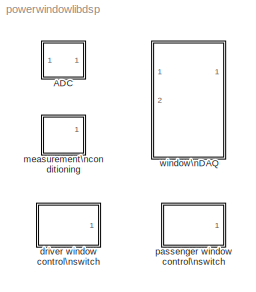
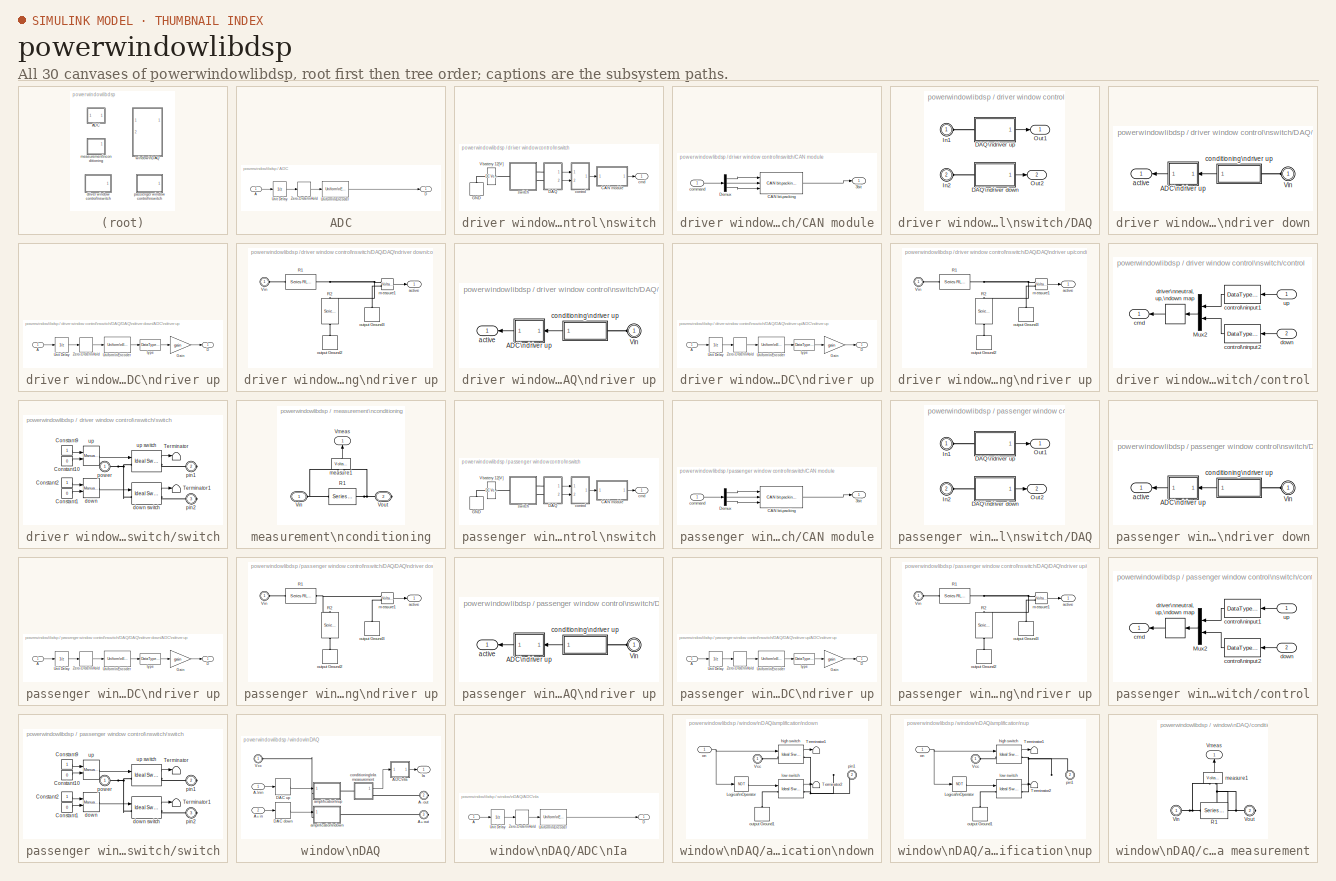
[diagram: thumbnail index - all 30 canvases of the model, root first then tree order]
MODEL powerwindowlibdsp
KIND library
CONFIG InitFcn = powericon('psbinitsys',bdroot);
BLOCK [SubSystem] ADC
  MaskCallbackString = |||
  MaskDescription = Analog (A) to digital (D) converter with sample rate, conversion delay, range, and number of bits used for conversion.
  MaskDisplay = plot([0.5 1.5 1.5 2.5 2.5 3.5 3.5 4.5], [0 0 1 1 2 2 3 3])\nplot([0 3], [0 3])
  MaskEnableString = on,on,on,on
  MaskIconFrame = on
  MaskIconOpaque = on
  MaskIconRotate = port
  MaskIconUnits = autoscale
  MaskInitialization = \n
  MaskPromptString = sample time (-1 for inherited)|peak|delay (-1 for inherited)|bits
  MaskStyleString = edit,edit,edit,edit
  MaskTabNameString = ,,,
  MaskToolTipString = on,on,on,on
  MaskTunableValueString = on,on,on,on
  MaskType = AD Converter
  MaskValueString = 0.01|3.5|0.005|8
  MaskVarAliasString = ,,,
  MaskVariables = Ts=@1;peak=@2;Td=@3;bits=@4;
  MaskVisibilityString = on,on,on,on
  MinAlgLoopOccurrences = off
  Ports = [1, 1]
  PropExecContextAcrossSSBoundary = on
  RTWSystemCode = Auto
  TreatAsAtomicUnit = off
BLOCK [Inport] ADC/A
  IconDisplay = Port number
  LatchInput = off
  Port = 1
BLOCK [Outport] ADC/D
  BusOutputAsStruct = off
  IconDisplay = Port number
BLOCK [Reference] ADC/Uniform\nEncoder  REF=dspquant2/Uniform\nEncoder
  Ports = [1, 1]
  SourceBlock = dspquant2/Uniform\nEncoder
  SourceType = Uniform Encoder
  bits = bits
  otype = Signed integer
  peak = peak
BLOCK [UnitDelay] ADC/Unit Delay
  SampleTime = Td
BLOCK [ZeroOrderHold] ADC/Zero-Order\nHold
  SampleTime = Ts
BLOCK [SubSystem] driver window control\nswitch
  MinAlgLoopOccurrences = off
  Ports = [0, 1]
  PropExecContextAcrossSSBoundary = on
  RTWSystemCode = Auto
  TreatAsAtomicUnit = off
BLOCK [SubSystem] driver window control\nswitch/CAN module
  MinAlgLoopOccurrences = off
  Ports = [1, 1]
  PropExecContextAcrossSSBoundary = on
  RTWSystemCode = Auto
  TreatAsAtomicUnit = off
BLOCK [Outport] driver window control\nswitch/CAN module/3bit
  BusOutputAsStruct = off
  IconDisplay = Port number
BLOCK [Reference] driver window control\nswitch/CAN module/CAN bit-packing   REF=xpclib/CAN/Utilities/CAN bit-packing 
  Ports = [3, 1]
  SourceBlock = xpclib/CAN/Utilities/CAN bit-packing
  SourceType = bit2double
  bitpatterns = { [0:0] [1:1] [2:2]}
BLOCK [Demux] driver window control\nswitch/CAN module/Demux
  Outputs = 3
  Ports = [1, 3]
BLOCK [Inport] driver window control\nswitch/CAN module/command
  IconDisplay = Port number
  LatchInput = off
  Port = 1
BLOCK [SubSystem] driver window control\nswitch/DAQ
  MinAlgLoopOccurrences = off
  Ports = [0, 2, 0, 0, 0, 2]
  PropExecContextAcrossSSBoundary = on
  RTWSystemCode = Auto
  TreatAsAtomicUnit = off
BLOCK [SubSystem] driver window control\nswitch/DAQ/DAQ\ndriver down
  MinAlgLoopOccurrences = off
  Ports = [0, 1, 0, 0, 0, 1]
  PropExecContextAcrossSSBoundary = on
  RTWSystemCode = Auto
  TreatAsAtomicUnit = off
BLOCK [SubSystem] driver window control\nswitch/DAQ/DAQ\ndriver down/ADC\ndriver up
  MaskCallbackString = |||
  MaskDescription = Analog (A) to digital (D) converter with sample rate, conversion delay, range, and number of bits used for conversion.
  MaskDisplay = plot([0.5 1.5 1.5 2.5 2.5 3.5 3.5 4.5], [0 0 1 1 2 2 3 3])\nplot([0 3], [0 3])
  MaskEnableString = on,on,on,on
  MaskIconFrame = on
  MaskIconOpaque = on
  MaskIconRotate = port
  MaskIconUnits = autoscale
  MaskInitialization = gain = peak / (2^(bits-1));\n
  MaskPromptString = sample time (-1 for inherited)|delay (-1 for inherited)|peak|bits
  MaskStyleString = edit,edit,edit,edit
  MaskTabNameString = ,,,
  MaskToolTipString = on,on,on,on
  MaskTunableValueString = on,on,on,on
  MaskType = AD Converter
  MaskValueString = 0.01|0.005|4.9|2
  MaskVarAliasString = ,,,
  MaskVariables = Ts=@1;Td=@2;peak=@3;bits=@4;
  MaskVisibilityString = on,on,on,on
  MinAlgLoopOccurrences = off
  Ports = [1, 1]
  PropExecContextAcrossSSBoundary = on
  RTWSystemCode = Auto
  TreatAsAtomicUnit = off
BLOCK [Inport] driver window control\nswitch/DAQ/DAQ\ndriver down/ADC\ndriver up/A
  IconDisplay = Port number
  LatchInput = off
  Port = 1
BLOCK [Outport] driver window control\nswitch/DAQ/DAQ\ndriver down/ADC\ndriver up/D
  BusOutputAsStruct = off
  IconDisplay = Port number
BLOCK [Gain] driver window control\nswitch/DAQ/DAQ\ndriver down/ADC\ndriver up/Gain
  Gain = gain
BLOCK [Reference] driver window control\nswitch/DAQ/DAQ\ndriver down/ADC\ndriver up/Uniform\nEncoder  REF=dspquant2/Uniform\nEncoder
  Ports = [1, 1]
  SourceBlock = dspquant2/Uniform\nEncoder
  SourceType = Uniform Encoder
  bits = bits
  otype = Signed integer
  peak = peak
BLOCK [UnitDelay] driver window control\nswitch/DAQ/DAQ\ndriver down/ADC\ndriver up/Unit Delay
  SampleTime = Td
BLOCK [ZeroOrderHold] driver window control\nswitch/DAQ/DAQ\ndriver down/ADC\ndriver up/Zero-Order\nHold
  SampleTime = Ts
BLOCK [DataTypeConversion] driver window control\nswitch/DAQ/DAQ\ndriver down/ADC\ndriver up/type
  OutDataTypeMode = double
BLOCK [PMIOPort] driver window control\nswitch/DAQ/DAQ\ndriver down/Vin
  Port = 1
  Side = Left
BLOCK [Outport] driver window control\nswitch/DAQ/DAQ\ndriver down/active
  BusOutputAsStruct = off
  IconDisplay = Port number
BLOCK [SubSystem] driver window control\nswitch/DAQ/DAQ\ndriver down/conditioning\ndriver up
  MinAlgLoopOccurrences = off
  Ports = [0, 1, 0, 0, 0, 1]
  PropExecContextAcrossSSBoundary = on
  RTWSystemCode = Auto
  TreatAsAtomicUnit = off
BLOCK [Reference] driver window control\nswitch/DAQ/DAQ\ndriver down/conditioning\ndriver up/R1  REF=powerlib/Elements/Series RLC Branch
  Capacitance = inf
  Inductance = 0
  LConnTagsString = __new0
  LeftPortType = p1
  Measurements = None
  PhysicalDomain = powersysdomain
  Ports = [0, 0, 0, 0, 0, 1, 1]
  RConnTagsString = __new0
  Resistance = 6800
  RightPortType = p1
  SourceBlock = powerlib/Elements/Series RLC Branch
  SourceType = Series RLC Branch
  SubClassName = unknown
BLOCK [Reference] driver window control\nswitch/DAQ/DAQ\ndriver down/conditioning\ndriver up/R2  REF=powerlib/Elements/Series RLC Branch
  Capacitance = inf
  Inductance = 0
  LConnTagsString = __new0
  LeftPortType = p1
  Measurements = None
  PhysicalDomain = powersysdomain
  Ports = [0, 0, 0, 0, 0, 1, 1]
  RConnTagsString = __new0
  Resistance = 4700
  RightPortType = p1
  SourceBlock = powerlib/Elements/Series RLC Branch
  SourceType = Series RLC Branch
  SubClassName = unknown
BLOCK [PMIOPort] driver window control\nswitch/DAQ/DAQ\ndriver down/conditioning\ndriver up/Vin
  Port = 1
  Side = Left
BLOCK [Outport] driver window control\nswitch/DAQ/DAQ\ndriver down/conditioning\ndriver up/active
  BusOutputAsStruct = off
  IconDisplay = Port number
BLOCK [Reference] driver window control\nswitch/DAQ/DAQ\ndriver down/conditioning\ndriver up/measure1  REF=powerlib/Measurements/Voltage Measurement
  OutputType = Magnitude
  PSBequivalent = 0
  PhasorSimulation = off
  Ports = [0, 1, 0, 0, 0, 2]
  ShowPortLabels = on
  SourceBlock = powerlib/Measurements/Voltage Measurement
  SourceType = Voltage Measurement
BLOCK [PMComponent] driver window control\nswitch/DAQ/DAQ\ndriver down/conditioning\ndriver up/output Ground2
  LConnTagsString = a
  LeftPortType = p1
  MaskDescription = Ground connection.
  MaskDisplay = plot(-10,-10,10,10,-[5 5],[-10 10],[0 0],[-5 5],-[-5 -5],[-2.5 2.5],-[15 5],[0 0])
  MaskHelp = web(psbhelp);
  MaskIconFrame = off
  MaskIconOpaque = on
  MaskIconRotate = port
  MaskIconUnits = autoscale
  MaskType = Ground
  PhysicalDomain = powersysdomain
  Ports = [0, 0, 0, 0, 0, 1]
  RightPortType = p1
BLOCK [PMComponent] driver window control\nswitch/DAQ/DAQ\ndriver down/conditioning\ndriver up/output Ground3
  LConnTagsString = a
  LeftPortType = p1
  MaskDescription = Ground connection.
  MaskDisplay = plot(-10,-10,10,10,-[5 5],[-10 10],[0 0],[-5 5],-[-5 -5],[-2.5 2.5],-[15 5],[0 0])
  MaskHelp = web(psbhelp);
  MaskIconFrame = off
  MaskIconOpaque = on
  MaskIconRotate = port
  MaskIconUnits = autoscale
  MaskType = Ground
  PhysicalDomain = powersysdomain
  Ports = [0, 0, 0, 0, 0, 1]
  RightPortType = p1
BLOCK [SubSystem] driver window control\nswitch/DAQ/DAQ\ndriver up
  MinAlgLoopOccurrences = off
  Ports = [0, 1, 0, 0, 0, 1]
  PropExecContextAcrossSSBoundary = on
  RTWSystemCode = Auto
  TreatAsAtomicUnit = off
BLOCK [SubSystem] driver window control\nswitch/DAQ/DAQ\ndriver up/ADC\ndriver up
  MaskCallbackString = |||
  MaskDescription = Analog (A) to digital (D) converter with sample rate, conversion delay, range, and number of bits used for conversion.
  MaskDisplay = plot([0.5 1.5 1.5 2.5 2.5 3.5 3.5 4.5], [0 0 1 1 2 2 3 3])\nplot([0 3], [0 3])
  MaskEnableString = on,on,on,on
  MaskIconFrame = on
  MaskIconOpaque = on
  MaskIconRotate = port
  MaskIconUnits = autoscale
  MaskInitialization = gain = peak / (2^(bits-1));\n
  MaskPromptString = sample time (-1 for inherited)|delay (-1 for inherited)|peak|bits
  MaskStyleString = edit,edit,edit,edit
  MaskTabNameString = ,,,
  MaskToolTipString = on,on,on,on
  MaskTunableValueString = on,on,on,on
  MaskType = AD Converter
  MaskValueString = 0.01|0.005|4.9|2
  MaskVarAliasString = ,,,
  MaskVariables = Ts=@1;Td=@2;peak=@3;bits=@4;
  MaskVisibilityString = on,on,on,on
  MinAlgLoopOccurrences = off
  Ports = [1, 1]
  PropExecContextAcrossSSBoundary = on
  RTWSystemCode = Auto
  TreatAsAtomicUnit = off
BLOCK [Inport] driver window control\nswitch/DAQ/DAQ\ndriver up/ADC\ndriver up/A
  IconDisplay = Port number
  LatchInput = off
  Port = 1
BLOCK [Outport] driver window control\nswitch/DAQ/DAQ\ndriver up/ADC\ndriver up/D
  BusOutputAsStruct = off
  IconDisplay = Port number
BLOCK [Gain] driver window control\nswitch/DAQ/DAQ\ndriver up/ADC\ndriver up/Gain
  Gain = gain
BLOCK [Reference] driver window control\nswitch/DAQ/DAQ\ndriver up/ADC\ndriver up/Uniform\nEncoder  REF=dspquant2/Uniform\nEncoder
  Ports = [1, 1]
  SourceBlock = dspquant2/Uniform\nEncoder
  SourceType = Uniform Encoder
  bits = bits
  otype = Signed integer
  peak = peak
BLOCK [UnitDelay] driver window control\nswitch/DAQ/DAQ\ndriver up/ADC\ndriver up/Unit Delay
  SampleTime = Td
BLOCK [ZeroOrderHold] driver window control\nswitch/DAQ/DAQ\ndriver up/ADC\ndriver up/Zero-Order\nHold
  SampleTime = Ts
BLOCK [DataTypeConversion] driver window control\nswitch/DAQ/DAQ\ndriver up/ADC\ndriver up/type
  OutDataTypeMode = double
BLOCK [PMIOPort] driver window control\nswitch/DAQ/DAQ\ndriver up/Vin
  Port = 1
  Side = Left
BLOCK [Outport] driver window control\nswitch/DAQ/DAQ\ndriver up/active
  BusOutputAsStruct = off
  IconDisplay = Port number
BLOCK [SubSystem] driver window control\nswitch/DAQ/DAQ\ndriver up/conditioning\ndriver up
  MinAlgLoopOccurrences = off
  Ports = [0, 1, 0, 0, 0, 1]
  PropExecContextAcrossSSBoundary = on
  RTWSystemCode = Auto
  TreatAsAtomicUnit = off
BLOCK [Reference] driver window control\nswitch/DAQ/DAQ\ndriver up/conditioning\ndriver up/R1  REF=powerlib/Elements/Series RLC Branch
  Capacitance = inf
  Inductance = 0
  LConnTagsString = __new0
  LeftPortType = p1
  Measurements = None
  PhysicalDomain = powersysdomain
  Ports = [0, 0, 0, 0, 0, 1, 1]
  RConnTagsString = __new0
  Resistance = 6800
  RightPortType = p1
  SourceBlock = powerlib/Elements/Series RLC Branch
  SourceType = Series RLC Branch
  SubClassName = unknown
BLOCK [Reference] driver window control\nswitch/DAQ/DAQ\ndriver up/conditioning\ndriver up/R2  REF=powerlib/Elements/Series RLC Branch
  Capacitance = inf
  Inductance = 0
  LConnTagsString = __new0
  LeftPortType = p1
  Measurements = None
  PhysicalDomain = powersysdomain
  Ports = [0, 0, 0, 0, 0, 1, 1]
  RConnTagsString = __new0
  Resistance = 4700
  RightPortType = p1
  SourceBlock = powerlib/Elements/Series RLC Branch
  SourceType = Series RLC Branch
  SubClassName = unknown
BLOCK [PMIOPort] driver window control\nswitch/DAQ/DAQ\ndriver up/conditioning\ndriver up/Vin
  Port = 1
  Side = Left
BLOCK [Outport] driver window control\nswitch/DAQ/DAQ\ndriver up/conditioning\ndriver up/active
  BusOutputAsStruct = off
  IconDisplay = Port number
BLOCK [Reference] driver window control\nswitch/DAQ/DAQ\ndriver up/conditioning\ndriver up/measure1  REF=powerlib/Measurements/Voltage Measurement
  OutputType = Magnitude
  PSBequivalent = 0
  PhasorSimulation = off
  Ports = [0, 1, 0, 0, 0, 2]
  ShowPortLabels = on
  SourceBlock = powerlib/Measurements/Voltage Measurement
  SourceType = Voltage Measurement
BLOCK [PMComponent] driver window control\nswitch/DAQ/DAQ\ndriver up/conditioning\ndriver up/output Ground2
  LConnTagsString = a
  LeftPortType = p1
  MaskDescription = Ground connection.
  MaskDisplay = plot(-10,-10,10,10,-[5 5],[-10 10],[0 0],[-5 5],-[-5 -5],[-2.5 2.5],-[15 5],[0 0])
  MaskHelp = web(psbhelp);
  MaskIconFrame = off
  MaskIconOpaque = on
  MaskIconRotate = port
  MaskIconUnits = autoscale
  MaskType = Ground
  PhysicalDomain = powersysdomain
  Ports = [0, 0, 0, 0, 0, 1]
  RightPortType = p1
BLOCK [PMComponent] driver window control\nswitch/DAQ/DAQ\ndriver up/conditioning\ndriver up/output Ground3
  LConnTagsString = a
  LeftPortType = p1
  MaskDescription = Ground connection.
  MaskDisplay = plot(-10,-10,10,10,-[5 5],[-10 10],[0 0],[-5 5],-[-5 -5],[-2.5 2.5],-[15 5],[0 0])
  MaskHelp = web(psbhelp);
  MaskIconFrame = off
  MaskIconOpaque = on
  MaskIconRotate = port
  MaskIconUnits = autoscale
  MaskType = Ground
  PhysicalDomain = powersysdomain
  Ports = [0, 0, 0, 0, 0, 1]
  RightPortType = p1
BLOCK [PMIOPort] driver window control\nswitch/DAQ/In1
  Port = 1
  Side = Left
BLOCK [PMIOPort] driver window control\nswitch/DAQ/In2
  Port = 2
  Side = Left
BLOCK [Outport] driver window control\nswitch/DAQ/Out1
  BusOutputAsStruct = off
  IconDisplay = Port number
BLOCK [Outport] driver window control\nswitch/DAQ/Out2
  BusOutputAsStruct = off
  IconDisplay = Port number
  Port = 2
BLOCK [PMComponent] driver window control\nswitch/GND
  LConnTagsString = a
  LeftPortType = p1
  MaskDescription = Ground connection.
  MaskDisplay = plot(-10,-10,10,10,-[5 5],[-10 10],[0 0],[-5 5],-[-5 -5],[-2.5 2.5],-[15 5],[0 0])
  MaskHelp = web(psbhelp);
  MaskIconFrame = off
  MaskIconOpaque = on
  MaskIconRotate = port
  MaskIconUnits = autoscale
  MaskType = Ground
  PhysicalDomain = powersysdomain
  Ports = [0, 0, 0, 0, 0, 1]
  RightPortType = p1
BLOCK [Reference] driver window control\nswitch/Vbattery 12[V]  REF=powerlib/Electrical\nSources/DC Voltage Source
  Amplitude = 12
  Measurements = None
  Ports = [0, 0, 0, 0, 0, 1, 1]
  ShowPortLabels = on
  SourceBlock = powerlib/Electrical\nSources/DC Voltage Source
  SourceType = DC Voltage Source
BLOCK [Outport] driver window control\nswitch/cmd
  BusOutputAsStruct = off
  IconDisplay = Port number
BLOCK [SubSystem] driver window control\nswitch/control
  MinAlgLoopOccurrences = off
  Ports = [2, 1]
  PropExecContextAcrossSSBoundary = on
  RTWSystemCode = Auto
  TreatAsAtomicUnit = off
BLOCK [Mux] driver window control\nswitch/control/Mux2
  DisplayOption = bar
  Inputs = 2
  Ports = [2, 1]
BLOCK [Outport] driver window control\nswitch/control/cmd
  BusOutputAsStruct = off
  IconDisplay = Port number
BLOCK [DataTypeConversion] driver window control\nswitch/control/control\ninput1
  OutDataTypeMode = boolean
BLOCK [DataTypeConversion] driver window control\nswitch/control/control\ninput2
  OutDataTypeMode = boolean
BLOCK [Inport] driver window control\nswitch/control/down
  IconDisplay = Port number
  LatchInput = off
  Port = 2
BLOCK [CombinatorialLogic] driver window control\nswitch/control/driver\nneutral, up,\ndown map
  TruthTable = [1 0 0;0 0 1;0 1 0;1 0 0]
BLOCK [Inport] driver window control\nswitch/control/up
  IconDisplay = Port number
  LatchInput = off
  Port = 1
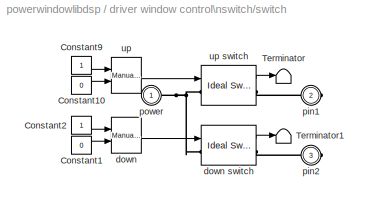
BLOCK [SubSystem] driver window control\nswitch/switch
  MinAlgLoopOccurrences = off
  Ports = [0, 0, 0, 0, 0, 1, 2]
  PropExecContextAcrossSSBoundary = on
  RTWSystemCode = Auto
  TreatAsAtomicUnit = off
BLOCK [Constant] driver window control\nswitch/switch/Constant1
  Value = 0
BLOCK [Constant] driver window control\nswitch/switch/Constant10
  Value = 0
BLOCK [Constant] driver window control\nswitch/switch/Constant2
BLOCK [Constant] driver window control\nswitch/switch/Constant9
BLOCK [Terminator] driver window control\nswitch/switch/Terminator
BLOCK [Terminator] driver window control\nswitch/switch/Terminator1
BLOCK [Reference] driver window control\nswitch/switch/down  REF=simulink/Signal\nRouting/Manual Switch
  Ports = [2, 1]
  ShowPortLabels = on
  SourceBlock = simulink/Signal\nRouting/Manual Switch
  SourceType = Manual Switch
  action = 0
  sw = 0
BLOCK [Reference] driver window control\nswitch/switch/down switch  REF=powerlib/Power\nElectronics/Ideal Switch
  Cs = inf
  IC = 0
  Lon = 0
  Measurements = on
  Ports = [1, 1, 0, 0, 0, 1, 1]
  Ron = 0.01
  Rs = 1000000
  ShowPortLabels = on
  SourceBlock = powerlib/Power\nElectronics/Ideal Switch
  SourceType = Ideal Switch
BLOCK [PMIOPort] driver window control\nswitch/switch/pin1
  Port = 2
  Side = Right
BLOCK [PMIOPort] driver window control\nswitch/switch/pin2
  Port = 3
  Side = Right
BLOCK [PMIOPort] driver window control\nswitch/switch/power
  Port = 1
  Side = Left
BLOCK [Reference] driver window control\nswitch/switch/up  REF=simulink/Signal\nRouting/Manual Switch
  Ports = [2, 1]
  ShowPortLabels = on
  SourceBlock = simulink/Signal\nRouting/Manual Switch
  SourceType = Manual Switch
  action = 0
  sw = 0
BLOCK [Reference] driver window control\nswitch/switch/up switch  REF=powerlib/Power\nElectronics/Ideal Switch
  Cs = inf
  IC = 0
  Lon = 0
  Measurements = on
  Ports = [1, 1, 0, 0, 0, 1, 1]
  Ron = 0.01
  Rs = 1000000
  ShowPortLabels = on
  SourceBlock = powerlib/Power\nElectronics/Ideal Switch
  SourceType = Ideal Switch
BLOCK [SubSystem] measurement\nconditioning
  MinAlgLoopOccurrences = off
  Ports = [0, 1, 0, 0, 0, 1, 1]
  PropExecContextAcrossSSBoundary = on
  RTWSystemCode = Auto
  TreatAsAtomicUnit = off
BLOCK [Reference] measurement\nconditioning/R1  REF=powerlib/Elements/Series RLC Branch
  Capacitance = inf
  Inductance = 0
  LConnTagsString = __new0
  LeftPortType = p1
  Measurements = None
  PhysicalDomain = powersysdomain
  Ports = [0, 0, 0, 0, 0, 1, 1]
  RConnTagsString = __new0
  Resistance = 0.18
  RightPortType = p1
  SourceBlock = powerlib/Elements/Series RLC Branch
  SourceType = Series RLC Branch
  SubClassName = unknown
BLOCK [PMIOPort] measurement\nconditioning/Vin
  Port = 1
  Side = Left
  Tag = PMCPort
BLOCK [Outport] measurement\nconditioning/Vmeas
  BusOutputAsStruct = off
  IconDisplay = Port number
BLOCK [PMIOPort] measurement\nconditioning/Vout
  Port = 2
  Side = Right
  Tag = PMCPort
BLOCK [Reference] measurement\nconditioning/measure1  REF=powerlib/Measurements/Voltage Measurement
  OutputType = Magnitude
  PSBequivalent = 0
  PhasorSimulation = off
  Ports = [0, 1, 0, 0, 0, 2]
  ShowPortLabels = on
  SourceBlock = powerlib/Measurements/Voltage Measurement
  SourceType = Voltage Measurement
BLOCK [SubSystem] passenger window control\nswitch
  MinAlgLoopOccurrences = off
  Ports = [0, 1]
  PropExecContextAcrossSSBoundary = on
  RTWSystemCode = Auto
  TreatAsAtomicUnit = off
BLOCK [SubSystem] passenger window control\nswitch/CAN module
  MinAlgLoopOccurrences = off
  Ports = [1, 1]
  PropExecContextAcrossSSBoundary = on
  RTWSystemCode = Auto
  TreatAsAtomicUnit = off
BLOCK [Outport] passenger window control\nswitch/CAN module/3bit
  BusOutputAsStruct = off
  IconDisplay = Port number
BLOCK [Reference] passenger window control\nswitch/CAN module/CAN bit-packing   REF=xpclib/CAN/Utilities/CAN bit-packing 
  Ports = [3, 1]
  SourceBlock = xpclib/CAN/Utilities/CAN bit-packing
  SourceType = bit2double
  bitpatterns = { [0:0] [1:1] [2:2]}
BLOCK [Demux] passenger window control\nswitch/CAN module/Demux
  Outputs = 3
  Ports = [1, 3]
BLOCK [Inport] passenger window control\nswitch/CAN module/command
  IconDisplay = Port number
  LatchInput = off
  Port = 1
BLOCK [SubSystem] passenger window control\nswitch/DAQ
  MinAlgLoopOccurrences = off
  Ports = [0, 2, 0, 0, 0, 2]
  PropExecContextAcrossSSBoundary = on
  RTWSystemCode = Auto
  TreatAsAtomicUnit = off
BLOCK [SubSystem] passenger window control\nswitch/DAQ/DAQ\ndriver down
  MinAlgLoopOccurrences = off
  Ports = [0, 1, 0, 0, 0, 1]
  PropExecContextAcrossSSBoundary = on
  RTWSystemCode = Auto
  TreatAsAtomicUnit = off
BLOCK [SubSystem] passenger window control\nswitch/DAQ/DAQ\ndriver down/ADC\ndriver up
  MaskCallbackString = |||
  MaskDescription = Analog (A) to digital (D) converter with sample rate, conversion delay, range, and number of bits used for conversion.
  MaskDisplay = plot([0.5 1.5 1.5 2.5 2.5 3.5 3.5 4.5], [0 0 1 1 2 2 3 3])\nplot([0 3], [0 3])
  MaskEnableString = on,on,on,on
  MaskIconFrame = on
  MaskIconOpaque = on
  MaskIconRotate = port
  MaskIconUnits = autoscale
  MaskInitialization = gain = peak / (2^(bits-1));\n
  MaskPromptString = sample time (-1 for inherited)|delay (-1 for inherited)|peak|bits
  MaskStyleString = edit,edit,edit,edit
  MaskTabNameString = ,,,
  MaskToolTipString = on,on,on,on
  MaskTunableValueString = on,on,on,on
  MaskType = AD Converter
  MaskValueString = 0.01|0.005|4.9|2
  MaskVarAliasString = ,,,
  MaskVariables = Ts=@1;Td=@2;peak=@3;bits=@4;
  MaskVisibilityString = on,on,on,on
  MinAlgLoopOccurrences = off
  Ports = [1, 1]
  PropExecContextAcrossSSBoundary = on
  RTWSystemCode = Auto
  TreatAsAtomicUnit = off
BLOCK [Inport] passenger window control\nswitch/DAQ/DAQ\ndriver down/ADC\ndriver up/A
  IconDisplay = Port number
  LatchInput = off
  Port = 1
BLOCK [Outport] passenger window control\nswitch/DAQ/DAQ\ndriver down/ADC\ndriver up/D
  BusOutputAsStruct = off
  IconDisplay = Port number
BLOCK [Gain] passenger window control\nswitch/DAQ/DAQ\ndriver down/ADC\ndriver up/Gain
  Gain = gain
BLOCK [Reference] passenger window control\nswitch/DAQ/DAQ\ndriver down/ADC\ndriver up/Uniform\nEncoder  REF=dspquant2/Uniform\nEncoder
  Ports = [1, 1]
  SourceBlock = dspquant2/Uniform\nEncoder
  SourceType = Uniform Encoder
  bits = bits
  otype = Signed integer
  peak = peak
BLOCK [UnitDelay] passenger window control\nswitch/DAQ/DAQ\ndriver down/ADC\ndriver up/Unit Delay
  SampleTime = Td
BLOCK [ZeroOrderHold] passenger window control\nswitch/DAQ/DAQ\ndriver down/ADC\ndriver up/Zero-Order\nHold
  SampleTime = Ts
BLOCK [DataTypeConversion] passenger window control\nswitch/DAQ/DAQ\ndriver down/ADC\ndriver up/type
  OutDataTypeMode = double
BLOCK [PMIOPort] passenger window control\nswitch/DAQ/DAQ\ndriver down/Vin
  Port = 1
  Side = Left
BLOCK [Outport] passenger window control\nswitch/DAQ/DAQ\ndriver down/active
  BusOutputAsStruct = off
  IconDisplay = Port number
BLOCK [SubSystem] passenger window control\nswitch/DAQ/DAQ\ndriver down/conditioning\ndriver up
  MinAlgLoopOccurrences = off
  Ports = [0, 1, 0, 0, 0, 1]
  PropExecContextAcrossSSBoundary = on
  RTWSystemCode = Auto
  TreatAsAtomicUnit = off
BLOCK [Reference] passenger window control\nswitch/DAQ/DAQ\ndriver down/conditioning\ndriver up/R1  REF=powerlib/Elements/Series RLC Branch
  Capacitance = inf
  Inductance = 0
  LConnTagsString = __new0
  LeftPortType = p1
  Measurements = None
  PhysicalDomain = powersysdomain
  Ports = [0, 0, 0, 0, 0, 1, 1]
  RConnTagsString = __new0
  Resistance = 6800
  RightPortType = p1
  SourceBlock = powerlib/Elements/Series RLC Branch
  SourceType = Series RLC Branch
  SubClassName = unknown
BLOCK [Reference] passenger window control\nswitch/DAQ/DAQ\ndriver down/conditioning\ndriver up/R2  REF=powerlib/Elements/Series RLC Branch
  Capacitance = inf
  Inductance = 0
  LConnTagsString = __new0
  LeftPortType = p1
  Measurements = None
  PhysicalDomain = powersysdomain
  Ports = [0, 0, 0, 0, 0, 1, 1]
  RConnTagsString = __new0
  Resistance = 4700
  RightPortType = p1
  SourceBlock = powerlib/Elements/Series RLC Branch
  SourceType = Series RLC Branch
  SubClassName = unknown
BLOCK [PMIOPort] passenger window control\nswitch/DAQ/DAQ\ndriver down/conditioning\ndriver up/Vin
  Port = 1
  Side = Left
BLOCK [Outport] passenger window control\nswitch/DAQ/DAQ\ndriver down/conditioning\ndriver up/active
  BusOutputAsStruct = off
  IconDisplay = Port number
BLOCK [Reference] passenger window control\nswitch/DAQ/DAQ\ndriver down/conditioning\ndriver up/measure1  REF=powerlib/Measurements/Voltage Measurement
  OutputType = Magnitude
  PSBequivalent = 0
  PhasorSimulation = off
  Ports = [0, 1, 0, 0, 0, 2]
  ShowPortLabels = on
  SourceBlock = powerlib/Measurements/Voltage Measurement
  SourceType = Voltage Measurement
BLOCK [PMComponent] passenger window control\nswitch/DAQ/DAQ\ndriver down/conditioning\ndriver up/output Ground2
  LConnTagsString = a
  LeftPortType = p1
  MaskDescription = Ground connection.
  MaskDisplay = plot(-10,-10,10,10,-[5 5],[-10 10],[0 0],[-5 5],-[-5 -5],[-2.5 2.5],-[15 5],[0 0])
  MaskHelp = web(psbhelp);
  MaskIconFrame = off
  MaskIconOpaque = on
  MaskIconRotate = port
  MaskIconUnits = autoscale
  MaskType = Ground
  PhysicalDomain = powersysdomain
  Ports = [0, 0, 0, 0, 0, 1]
  RightPortType = p1
BLOCK [PMComponent] passenger window control\nswitch/DAQ/DAQ\ndriver down/conditioning\ndriver up/output Ground3
  LConnTagsString = a
  LeftPortType = p1
  MaskDescription = Ground connection.
  MaskDisplay = plot(-10,-10,10,10,-[5 5],[-10 10],[0 0],[-5 5],-[-5 -5],[-2.5 2.5],-[15 5],[0 0])
  MaskHelp = web(psbhelp);
  MaskIconFrame = off
  MaskIconOpaque = on
  MaskIconRotate = port
  MaskIconUnits = autoscale
  MaskType = Ground
  PhysicalDomain = powersysdomain
  Ports = [0, 0, 0, 0, 0, 1]
  RightPortType = p1
BLOCK [SubSystem] passenger window control\nswitch/DAQ/DAQ\ndriver up
  MinAlgLoopOccurrences = off
  Ports = [0, 1, 0, 0, 0, 1]
  PropExecContextAcrossSSBoundary = on
  RTWSystemCode = Auto
  TreatAsAtomicUnit = off
BLOCK [SubSystem] passenger window control\nswitch/DAQ/DAQ\ndriver up/ADC\ndriver up
  MaskCallbackString = |||
  MaskDescription = Analog (A) to digital (D) converter with sample rate, conversion delay, range, and number of bits used for conversion.
  MaskDisplay = plot([0.5 1.5 1.5 2.5 2.5 3.5 3.5 4.5], [0 0 1 1 2 2 3 3])\nplot([0 3], [0 3])
  MaskEnableString = on,on,on,on
  MaskIconFrame = on
  MaskIconOpaque = on
  MaskIconRotate = port
  MaskIconUnits = autoscale
  MaskInitialization = gain = peak / (2^(bits-1));\n
  MaskPromptString = sample time (-1 for inherited)|delay (-1 for inherited)|peak|bits
  MaskStyleString = edit,edit,edit,edit
  MaskTabNameString = ,,,
  MaskToolTipString = on,on,on,on
  MaskTunableValueString = on,on,on,on
  MaskType = AD Converter
  MaskValueString = 0.01|0.005|4.9|2
  MaskVarAliasString = ,,,
  MaskVariables = Ts=@1;Td=@2;peak=@3;bits=@4;
  MaskVisibilityString = on,on,on,on
  MinAlgLoopOccurrences = off
  Ports = [1, 1]
  PropExecContextAcrossSSBoundary = on
  RTWSystemCode = Auto
  TreatAsAtomicUnit = off
BLOCK [Inport] passenger window control\nswitch/DAQ/DAQ\ndriver up/ADC\ndriver up/A
  IconDisplay = Port number
  LatchInput = off
  Port = 1
BLOCK [Outport] passenger window control\nswitch/DAQ/DAQ\ndriver up/ADC\ndriver up/D
  BusOutputAsStruct = off
  IconDisplay = Port number
BLOCK [Gain] passenger window control\nswitch/DAQ/DAQ\ndriver up/ADC\ndriver up/Gain
  Gain = gain
BLOCK [Reference] passenger window control\nswitch/DAQ/DAQ\ndriver up/ADC\ndriver up/Uniform\nEncoder  REF=dspquant2/Uniform\nEncoder
  Ports = [1, 1]
  SourceBlock = dspquant2/Uniform\nEncoder
  SourceType = Uniform Encoder
  bits = bits
  otype = Signed integer
  peak = peak
BLOCK [UnitDelay] passenger window control\nswitch/DAQ/DAQ\ndriver up/ADC\ndriver up/Unit Delay
  SampleTime = Td
BLOCK [ZeroOrderHold] passenger window control\nswitch/DAQ/DAQ\ndriver up/ADC\ndriver up/Zero-Order\nHold
  SampleTime = Ts
BLOCK [DataTypeConversion] passenger window control\nswitch/DAQ/DAQ\ndriver up/ADC\ndriver up/type
  OutDataTypeMode = double
BLOCK [PMIOPort] passenger window control\nswitch/DAQ/DAQ\ndriver up/Vin
  Port = 1
  Side = Left
BLOCK [Outport] passenger window control\nswitch/DAQ/DAQ\ndriver up/active
  BusOutputAsStruct = off
  IconDisplay = Port number
BLOCK [SubSystem] passenger window control\nswitch/DAQ/DAQ\ndriver up/conditioning\ndriver up
  MinAlgLoopOccurrences = off
  Ports = [0, 1, 0, 0, 0, 1]
  PropExecContextAcrossSSBoundary = on
  RTWSystemCode = Auto
  TreatAsAtomicUnit = off
BLOCK [Reference] passenger window control\nswitch/DAQ/DAQ\ndriver up/conditioning\ndriver up/R1  REF=powerlib/Elements/Series RLC Branch
  Capacitance = inf
  Inductance = 0
  LConnTagsString = __new0
  LeftPortType = p1
  Measurements = None
  PhysicalDomain = powersysdomain
  Ports = [0, 0, 0, 0, 0, 1, 1]
  RConnTagsString = __new0
  Resistance = 6800
  RightPortType = p1
  SourceBlock = powerlib/Elements/Series RLC Branch
  SourceType = Series RLC Branch
  SubClassName = unknown
BLOCK [Reference] passenger window control\nswitch/DAQ/DAQ\ndriver up/conditioning\ndriver up/R2  REF=powerlib/Elements/Series RLC Branch
  Capacitance = inf
  Inductance = 0
  LConnTagsString = __new0
  LeftPortType = p1
  Measurements = None
  PhysicalDomain = powersysdomain
  Ports = [0, 0, 0, 0, 0, 1, 1]
  RConnTagsString = __new0
  Resistance = 4700
  RightPortType = p1
  SourceBlock = powerlib/Elements/Series RLC Branch
  SourceType = Series RLC Branch
  SubClassName = unknown
BLOCK [PMIOPort] passenger window control\nswitch/DAQ/DAQ\ndriver up/conditioning\ndriver up/Vin
  Port = 1
  Side = Left
BLOCK [Outport] passenger window control\nswitch/DAQ/DAQ\ndriver up/conditioning\ndriver up/active
  BusOutputAsStruct = off
  IconDisplay = Port number
BLOCK [Reference] passenger window control\nswitch/DAQ/DAQ\ndriver up/conditioning\ndriver up/measure1  REF=powerlib/Measurements/Voltage Measurement
  OutputType = Magnitude
  PSBequivalent = 0
  PhasorSimulation = off
  Ports = [0, 1, 0, 0, 0, 2]
  ShowPortLabels = on
  SourceBlock = powerlib/Measurements/Voltage Measurement
  SourceType = Voltage Measurement
BLOCK [PMComponent] passenger window control\nswitch/DAQ/DAQ\ndriver up/conditioning\ndriver up/output Ground2
  LConnTagsString = a
  LeftPortType = p1
  MaskDescription = Ground connection.
  MaskDisplay = plot(-10,-10,10,10,-[5 5],[-10 10],[0 0],[-5 5],-[-5 -5],[-2.5 2.5],-[15 5],[0 0])
  MaskHelp = web(psbhelp);
  MaskIconFrame = off
  MaskIconOpaque = on
  MaskIconRotate = port
  MaskIconUnits = autoscale
  MaskType = Ground
  PhysicalDomain = powersysdomain
  Ports = [0, 0, 0, 0, 0, 1]
  RightPortType = p1
BLOCK [PMComponent] passenger window control\nswitch/DAQ/DAQ\ndriver up/conditioning\ndriver up/output Ground3
  LConnTagsString = a
  LeftPortType = p1
  MaskDescription = Ground connection.
  MaskDisplay = plot(-10,-10,10,10,-[5 5],[-10 10],[0 0],[-5 5],-[-5 -5],[-2.5 2.5],-[15 5],[0 0])
  MaskHelp = web(psbhelp);
  MaskIconFrame = off
  MaskIconOpaque = on
  MaskIconRotate = port
  MaskIconUnits = autoscale
  MaskType = Ground
  PhysicalDomain = powersysdomain
  Ports = [0, 0, 0, 0, 0, 1]
  RightPortType = p1
BLOCK [PMIOPort] passenger window control\nswitch/DAQ/In1
  Port = 1
  Side = Left
BLOCK [PMIOPort] passenger window control\nswitch/DAQ/In2
  Port = 2
  Side = Left
BLOCK [Outport] passenger window control\nswitch/DAQ/Out1
  BusOutputAsStruct = off
  IconDisplay = Port number
BLOCK [Outport] passenger window control\nswitch/DAQ/Out2
  BusOutputAsStruct = off
  IconDisplay = Port number
  Port = 2
BLOCK [PMComponent] passenger window control\nswitch/GND
  LConnTagsString = a
  LeftPortType = p1
  MaskDescription = Ground connection.
  MaskDisplay = plot(-10,-10,10,10,-[5 5],[-10 10],[0 0],[-5 5],-[-5 -5],[-2.5 2.5],-[15 5],[0 0])
  MaskHelp = web(psbhelp);
  MaskIconFrame = off
  MaskIconOpaque = on
  MaskIconRotate = port
  MaskIconUnits = autoscale
  MaskType = Ground
  PhysicalDomain = powersysdomain
  Ports = [0, 0, 0, 0, 0, 1]
  RightPortType = p1
BLOCK [Reference] passenger window control\nswitch/Vbattery 12[V]  REF=powerlib/Electrical\nSources/DC Voltage Source
  Amplitude = 12
  Measurements = None
  Ports = [0, 0, 0, 0, 0, 1, 1]
  ShowPortLabels = on
  SourceBlock = powerlib/Electrical\nSources/DC Voltage Source
  SourceType = DC Voltage Source
BLOCK [Outport] passenger window control\nswitch/cmd
  BusOutputAsStruct = off
  IconDisplay = Port number
BLOCK [SubSystem] passenger window control\nswitch/control
  MinAlgLoopOccurrences = off
  Ports = [2, 1]
  PropExecContextAcrossSSBoundary = on
  RTWSystemCode = Auto
  TreatAsAtomicUnit = off
BLOCK [Mux] passenger window control\nswitch/control/Mux2
  DisplayOption = bar
  Inputs = 2
  Ports = [2, 1]
BLOCK [Outport] passenger window control\nswitch/control/cmd
  BusOutputAsStruct = off
  IconDisplay = Port number
BLOCK [DataTypeConversion] passenger window control\nswitch/control/control\ninput1
  OutDataTypeMode = boolean
BLOCK [DataTypeConversion] passenger window control\nswitch/control/control\ninput2
  OutDataTypeMode = boolean
BLOCK [Inport] passenger window control\nswitch/control/down
  IconDisplay = Port number
  LatchInput = off
  Port = 2
BLOCK [CombinatorialLogic] passenger window control\nswitch/control/driver\nneutral, up,\ndown map
  TruthTable = [1 0 0;0 0 1;0 1 0;1 0 0]
BLOCK [Inport] passenger window control\nswitch/control/up
  IconDisplay = Port number
  LatchInput = off
  Port = 1
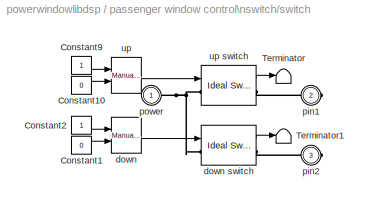
BLOCK [SubSystem] passenger window control\nswitch/switch
  MinAlgLoopOccurrences = off
  Ports = [0, 0, 0, 0, 0, 1, 2]
  PropExecContextAcrossSSBoundary = on
  RTWSystemCode = Auto
  TreatAsAtomicUnit = off
BLOCK [Constant] passenger window control\nswitch/switch/Constant1
  Value = 0
BLOCK [Constant] passenger window control\nswitch/switch/Constant10
  Value = 0
BLOCK [Constant] passenger window control\nswitch/switch/Constant2
BLOCK [Constant] passenger window control\nswitch/switch/Constant9
BLOCK [Terminator] passenger window control\nswitch/switch/Terminator
BLOCK [Terminator] passenger window control\nswitch/switch/Terminator1
BLOCK [Reference] passenger window control\nswitch/switch/down  REF=simulink/Signal\nRouting/Manual Switch
  Ports = [2, 1]
  ShowPortLabels = on
  SourceBlock = simulink/Signal\nRouting/Manual Switch
  SourceType = Manual Switch
  action = 0
  sw = 0
BLOCK [Reference] passenger window control\nswitch/switch/down switch  REF=powerlib/Power\nElectronics/Ideal Switch
  Cs = inf
  IC = 0
  Lon = 0
  Measurements = on
  Ports = [1, 1, 0, 0, 0, 1, 1]
  Ron = 0.01
  Rs = 1000000
  ShowPortLabels = on
  SourceBlock = powerlib/Power\nElectronics/Ideal Switch
  SourceType = Ideal Switch
BLOCK [PMIOPort] passenger window control\nswitch/switch/pin1
  Port = 2
  Side = Right
BLOCK [PMIOPort] passenger window control\nswitch/switch/pin2
  Port = 3
  Side = Right
BLOCK [PMIOPort] passenger window control\nswitch/switch/power
  Port = 1
  Side = Left
BLOCK [Reference] passenger window control\nswitch/switch/up  REF=simulink/Signal\nRouting/Manual Switch
  Ports = [2, 1]
  ShowPortLabels = on
  SourceBlock = simulink/Signal\nRouting/Manual Switch
  SourceType = Manual Switch
  action = 0
  sw = 0
BLOCK [Reference] passenger window control\nswitch/switch/up switch  REF=powerlib/Power\nElectronics/Ideal Switch
  Cs = inf
  IC = 0
  Lon = 0
  Measurements = on
  Ports = [1, 1, 0, 0, 0, 1, 1]
  Ron = 0.01
  Rs = 1000000
  ShowPortLabels = on
  SourceBlock = powerlib/Power\nElectronics/Ideal Switch
  SourceType = Ideal Switch
BLOCK [SubSystem] window\nDAQ
  MinAlgLoopOccurrences = off
  Ports = [2, 1, 0, 0, 0, 1, 2]
  PropExecContextAcrossSSBoundary = on
  RTWSystemCode = Auto
  TreatAsAtomicUnit = off
BLOCK [Inport] window\nDAQ/A+ in
  IconDisplay = Port number
  LatchInput = off
  Port = 2
BLOCK [PMIOPort] window\nDAQ/A+ out
  Port = 3
  Side = Right
BLOCK [PMIOPort] window\nDAQ/A- out
  Port = 2
  Side = Right
BLOCK [Inport] window\nDAQ/A-\nin
  IconDisplay = Port number
  LatchInput = off
  Port = 1
BLOCK [SubSystem] window\nDAQ/ADC\nIa
  MaskCallbackString = |||
  MaskDescription = Analog (A) to digital (D) converter with sample rate, conversion delay, range, and number of bits used for conversion.
  MaskDisplay = plot([0.5 1.5 1.5 2.5 2.5 3.5 3.5 4.5], [0 0 1 1 2 2 3 3])\nplot([0 3], [0 3])
  MaskEnableString = on,on,on,on
  MaskIconFrame = on
  MaskIconOpaque = on
  MaskIconRotate = port
  MaskIconUnits = autoscale
  MaskInitialization = \n
  MaskPromptString = sample time (-1 for inherited)|peak|delay (-1 for inherited)|bits
  MaskStyleString = edit,edit,edit,edit
  MaskTabNameString = ,,,
  MaskToolTipString = on,on,on,on
  MaskTunableValueString = on,on,on,on
  MaskType = AD Converter
  MaskValueString = 0.01|3.5|0.005|8
  MaskVarAliasString = ,,,
  MaskVariables = Ts=@1;peak=@2;Td=@3;bits=@4;
  MaskVisibilityString = on,on,on,on
  MinAlgLoopOccurrences = off
  Ports = [1, 1]
  PropExecContextAcrossSSBoundary = on
  RTWSystemCode = Auto
  TreatAsAtomicUnit = off
BLOCK [Inport] window\nDAQ/ADC\nIa/A
  IconDisplay = Port number
  LatchInput = off
  Port = 1
BLOCK [Outport] window\nDAQ/ADC\nIa/D
  BusOutputAsStruct = off
  IconDisplay = Port number
BLOCK [Reference] window\nDAQ/ADC\nIa/Uniform\nEncoder  REF=dspquant2/Uniform\nEncoder
  Ports = [1, 1]
  SourceBlock = dspquant2/Uniform\nEncoder
  SourceType = Uniform Encoder
  bits = bits
  otype = Signed integer
  peak = peak
BLOCK [UnitDelay] window\nDAQ/ADC\nIa/Unit Delay
  SampleTime = Td
BLOCK [ZeroOrderHold] window\nDAQ/ADC\nIa/Zero-Order\nHold
  SampleTime = Ts
BLOCK [ZeroOrderHold] window\nDAQ/DAC down
  SampleTime = 0.01
BLOCK [ZeroOrderHold] window\nDAQ/DAC up
  SampleTime = 0.01
BLOCK [Outport] window\nDAQ/Ia
  BusOutputAsStruct = off
  IconDisplay = Port number
BLOCK [PMIOPort] window\nDAQ/Vcc
  Port = 1
  Side = Left
BLOCK [SubSystem] window\nDAQ/amplification\ndown
  MinAlgLoopOccurrences = off
  Ports = [1, 0, 0, 0, 0, 1, 1]
  PropExecContextAcrossSSBoundary = on
  RTWSystemCode = Auto
  TreatAsAtomicUnit = off
BLOCK [Logic] window\nDAQ/amplification\ndown/Logical\nOperator
  Operator = NOT
  Ports = [1, 1]
BLOCK [Terminator] window\nDAQ/amplification\ndown/Terminator1
BLOCK [Terminator] window\nDAQ/amplification\ndown/Terminator2
BLOCK [PMIOPort] window\nDAQ/amplification\ndown/Vcc
  Port = 1
  Side = Left
BLOCK [Reference] window\nDAQ/amplification\ndown/high switch  REF=powerlib/Power\nElectronics/Ideal Switch
  Cs = inf
  IC = 0
  Lon = 0
  Measurements = on
  Ports = [1, 1, 0, 0, 0, 1, 1]
  Ron = 0.01
  Rs = 1000000
  ShowPortLabels = on
  SourceBlock = powerlib/Power\nElectronics/Ideal Switch
  SourceType = Ideal Switch
BLOCK [Reference] window\nDAQ/amplification\ndown/low switch  REF=powerlib/Power\nElectronics/Ideal Switch
  Cs = inf
  IC = 0
  Lon = 0
  Measurements = on
  Ports = [1, 1, 0, 0, 0, 1, 1]
  Ron = 0.01
  Rs = 1000000
  ShowPortLabels = on
  SourceBlock = powerlib/Power\nElectronics/Ideal Switch
  SourceType = Ideal Switch
BLOCK [Inport] window\nDAQ/amplification\ndown/on
  IconDisplay = Port number
  LatchInput = off
  Port = 1
BLOCK [PMComponent] window\nDAQ/amplification\ndown/output Ground1
  LConnTagsString = a
  LeftPortType = p1
  MaskDescription = Ground connection.
  MaskDisplay = plot(-10,-10,10,10,-[5 5],[-10 10],[0 0],[-5 5],-[-5 -5],[-2.5 2.5],-[15 5],[0 0])
  MaskHelp = web(psbhelp);
  MaskIconFrame = off
  MaskIconOpaque = on
  MaskIconRotate = port
  MaskIconUnits = autoscale
  MaskType = Ground
  PhysicalDomain = powersysdomain
  Ports = [0, 0, 0, 0, 0, 1]
  RightPortType = p1
BLOCK [PMIOPort] window\nDAQ/amplification\ndown/pin1
  Port = 2
  Side = Right
BLOCK [SubSystem] window\nDAQ/amplification\nup
  MinAlgLoopOccurrences = off
  Ports = [1, 0, 0, 0, 0, 1, 1]
  PropExecContextAcrossSSBoundary = on
  RTWSystemCode = Auto
  TreatAsAtomicUnit = off
BLOCK [Logic] window\nDAQ/amplification\nup/Logical\nOperator
  Operator = NOT
  Ports = [1, 1]
BLOCK [Terminator] window\nDAQ/amplification\nup/Terminator1
BLOCK [Terminator] window\nDAQ/amplification\nup/Terminator2
BLOCK [PMIOPort] window\nDAQ/amplification\nup/Vcc
  Port = 1
  Side = Left
BLOCK [Reference] window\nDAQ/amplification\nup/high switch  REF=powerlib/Power\nElectronics/Ideal Switch
  Cs = inf
  IC = 0
  Lon = 0
  Measurements = on
  Ports = [1, 1, 0, 0, 0, 1, 1]
  Ron = 0.01
  Rs = 1000000
  ShowPortLabels = on
  SourceBlock = powerlib/Power\nElectronics/Ideal Switch
  SourceType = Ideal Switch
BLOCK [Reference] window\nDAQ/amplification\nup/low switch  REF=powerlib/Power\nElectronics/Ideal Switch
  Cs = inf
  IC = 0
  Lon = 0
  Measurements = on
  Ports = [1, 1, 0, 0, 0, 1, 1]
  Ron = 0.01
  Rs = 1000000
  ShowPortLabels = on
  SourceBlock = powerlib/Power\nElectronics/Ideal Switch
  SourceType = Ideal Switch
BLOCK [Inport] window\nDAQ/amplification\nup/on
  IconDisplay = Port number
  LatchInput = off
  Port = 1
BLOCK [PMComponent] window\nDAQ/amplification\nup/output Ground1
  LConnTagsString = a
  LeftPortType = p1
  MaskDescription = Ground connection.
  MaskDisplay = plot(-10,-10,10,10,-[5 5],[-10 10],[0 0],[-5 5],-[-5 -5],[-2.5 2.5],-[15 5],[0 0])
  MaskHelp = web(psbhelp);
  MaskIconFrame = off
  MaskIconOpaque = on
  MaskIconRotate = port
  MaskIconUnits = autoscale
  MaskType = Ground
  PhysicalDomain = powersysdomain
  Ports = [0, 0, 0, 0, 0, 1]
  RightPortType = p1
BLOCK [PMIOPort] window\nDAQ/amplification\nup/pin1
  Port = 2
  Side = Right
BLOCK [SubSystem] window\nDAQ/conditioning\nIa measurement
  MinAlgLoopOccurrences = off
  Ports = [0, 1, 0, 0, 0, 1, 1]
  PropExecContextAcrossSSBoundary = on
  RTWSystemCode = Auto
  TreatAsAtomicUnit = off
BLOCK [Reference] window\nDAQ/conditioning\nIa measurement/R1  REF=powerlib/Elements/Series RLC Branch
  Capacitance = inf
  Inductance = 0
  LConnTagsString = __new0
  LeftPortType = p1
  Measurements = None
  PhysicalDomain = powersysdomain
  Ports = [0, 0, 0, 0, 0, 1, 1]
  RConnTagsString = __new0
  Resistance = 0.18
  RightPortType = p1
  SourceBlock = powerlib/Elements/Series RLC Branch
  SourceType = Series RLC Branch
  SubClassName = unknown
BLOCK [PMIOPort] window\nDAQ/conditioning\nIa measurement/Vin
  Port = 1
  Side = Left
BLOCK [Outport] window\nDAQ/conditioning\nIa measurement/Vmeas
  BusOutputAsStruct = off
  IconDisplay = Port number
BLOCK [PMIOPort] window\nDAQ/conditioning\nIa measurement/Vout
  Port = 2
  Side = Right
BLOCK [Reference] window\nDAQ/conditioning\nIa measurement/measure1  REF=powerlib/Measurements/Voltage Measurement
  OutputType = Magnitude
  PSBequivalent = 0
  PhasorSimulation = off
  Ports = [0, 1, 0, 0, 0, 2]
  ShowPortLabels = on
  SourceBlock = powerlib/Measurements/Voltage Measurement
  SourceType = Voltage Measurement
LINE ADC/A:1 -> ADC/Unit Delay:1
LINE ADC/Uniform\nEncoder:1 -> ADC/D:1
LINE ADC/Unit Delay:1 -> ADC/Zero-Order\nHold:1
LINE ADC/Zero-Order\nHold:1 -> ADC/Uniform\nEncoder:1
LINE driver window control\nswitch/CAN module/CAN bit-packing :1 -> driver window control\nswitch/CAN module/3bit:1
LINE driver window control\nswitch/CAN module/Demux:1 -> driver window control\nswitch/CAN module/CAN bit-packing :1
LINE driver window control\nswitch/CAN module/Demux:2 -> driver window control\nswitch/CAN module/CAN bit-packing :2
LINE driver window control\nswitch/CAN module/Demux:3 -> driver window control\nswitch/CAN module/CAN bit-packing :3
LINE driver window control\nswitch/CAN module/command:1 -> driver window control\nswitch/CAN module/Demux:1
LINE driver window control\nswitch/CAN module:1 -> driver window control\nswitch/cmd:1
LINE driver window control\nswitch/DAQ/DAQ\ndriver down/ADC\ndriver up/A:1 -> driver window control\nswitch/DAQ/DAQ\ndriver down/ADC\ndriver up/Unit Delay:1
LINE driver window control\nswitch/DAQ/DAQ\ndriver down/ADC\ndriver up/Gain:1 -> driver window control\nswitch/DAQ/DAQ\ndriver down/ADC\ndriver up/D:1
LINE driver window control\nswitch/DAQ/DAQ\ndriver down/ADC\ndriver up/Uniform\nEncoder:1 -> driver window control\nswitch/DAQ/DAQ\ndriver down/ADC\ndriver up/type:1
LINE driver window control\nswitch/DAQ/DAQ\ndriver down/ADC\ndriver up/Unit Delay:1 -> driver window control\nswitch/DAQ/DAQ\ndriver down/ADC\ndriver up/Zero-Order\nHold:1
LINE driver window control\nswitch/DAQ/DAQ\ndriver down/ADC\ndriver up/Zero-Order\nHold:1 -> driver window control\nswitch/DAQ/DAQ\ndriver down/ADC\ndriver up/Uniform\nEncoder:1
LINE driver window control\nswitch/DAQ/DAQ\ndriver down/ADC\ndriver up/type:1 -> driver window control\nswitch/DAQ/DAQ\ndriver down/ADC\ndriver up/Gain:1
LINE driver window control\nswitch/DAQ/DAQ\ndriver down/ADC\ndriver up:1 -> driver window control\nswitch/DAQ/DAQ\ndriver down/active:1
LINE driver window control\nswitch/DAQ/DAQ\ndriver down/conditioning\ndriver up/measure1:1 -> driver window control\nswitch/DAQ/DAQ\ndriver down/conditioning\ndriver up/active:1
LINE driver window control\nswitch/DAQ/DAQ\ndriver down/conditioning\ndriver up:1 -> driver window control\nswitch/DAQ/DAQ\ndriver down/ADC\ndriver up:1
LINE driver window control\nswitch/DAQ/DAQ\ndriver down:1 -> driver window control\nswitch/DAQ/Out2:1
LINE driver window control\nswitch/DAQ/DAQ\ndriver up/ADC\ndriver up/A:1 -> driver window control\nswitch/DAQ/DAQ\ndriver up/ADC\ndriver up/Unit Delay:1
LINE driver window control\nswitch/DAQ/DAQ\ndriver up/ADC\ndriver up/Gain:1 -> driver window control\nswitch/DAQ/DAQ\ndriver up/ADC\ndriver up/D:1
LINE driver window control\nswitch/DAQ/DAQ\ndriver up/ADC\ndriver up/Uniform\nEncoder:1 -> driver window control\nswitch/DAQ/DAQ\ndriver up/ADC\ndriver up/type:1
LINE driver window control\nswitch/DAQ/DAQ\ndriver up/ADC\ndriver up/Unit Delay:1 -> driver window control\nswitch/DAQ/DAQ\ndriver up/ADC\ndriver up/Zero-Order\nHold:1
LINE driver window control\nswitch/DAQ/DAQ\ndriver up/ADC\ndriver up/Zero-Order\nHold:1 -> driver window control\nswitch/DAQ/DAQ\ndriver up/ADC\ndriver up/Uniform\nEncoder:1
LINE driver window control\nswitch/DAQ/DAQ\ndriver up/ADC\ndriver up/type:1 -> driver window control\nswitch/DAQ/DAQ\ndriver up/ADC\ndriver up/Gain:1
LINE driver window control\nswitch/DAQ/DAQ\ndriver up/ADC\ndriver up:1 -> driver window control\nswitch/DAQ/DAQ\ndriver up/active:1
LINE driver window control\nswitch/DAQ/DAQ\ndriver up/conditioning\ndriver up/measure1:1 -> driver window control\nswitch/DAQ/DAQ\ndriver up/conditioning\ndriver up/active:1
LINE driver window control\nswitch/DAQ/DAQ\ndriver up/conditioning\ndriver up:1 -> driver window control\nswitch/DAQ/DAQ\ndriver up/ADC\ndriver up:1
LINE driver window control\nswitch/DAQ/DAQ\ndriver up:1 -> driver window control\nswitch/DAQ/Out1:1
LINE driver window control\nswitch/DAQ:1 -> driver window control\nswitch/control:1
LINE driver window control\nswitch/DAQ:2 -> driver window control\nswitch/control:2
LINE driver window control\nswitch/control/Mux2:1 -> driver window control\nswitch/control/driver\nneutral, up,\ndown map:1
LINE driver window control\nswitch/control/control\ninput1:1 -> driver window control\nswitch/control/Mux2:1
LINE driver window control\nswitch/control/control\ninput2:1 -> driver window control\nswitch/control/Mux2:2
LINE driver window control\nswitch/control/down:1 -> driver window control\nswitch/control/control\ninput2:1
LINE driver window control\nswitch/control/driver\nneutral, up,\ndown map:1 -> driver window control\nswitch/control/cmd:1
LINE driver window control\nswitch/control/up:1 -> driver window control\nswitch/control/control\ninput1:1
LINE driver window control\nswitch/control:1 -> driver window control\nswitch/CAN module:1
LINE driver window control\nswitch/switch/Constant10:1 -> driver window control\nswitch/switch/up:2
LINE driver window control\nswitch/switch/Constant1:1 -> driver window control\nswitch/switch/down:2
LINE driver window control\nswitch/switch/Constant2:1 -> driver window control\nswitch/switch/down:1
LINE driver window control\nswitch/switch/Constant9:1 -> driver window control\nswitch/switch/up:1
LINE driver window control\nswitch/switch/down switch:1 -> driver window control\nswitch/switch/Terminator1:1
LINE driver window control\nswitch/switch/down:1 -> driver window control\nswitch/switch/down switch:1
LINE driver window control\nswitch/switch/up switch:1 -> driver window control\nswitch/switch/Terminator:1
LINE driver window control\nswitch/switch/up:1 -> driver window control\nswitch/switch/up switch:1
LINE measurement\nconditioning/measure1:1 -> measurement\nconditioning/Vmeas:1
LINE passenger window control\nswitch/CAN module/CAN bit-packing :1 -> passenger window control\nswitch/CAN module/3bit:1
LINE passenger window control\nswitch/CAN module/Demux:1 -> passenger window control\nswitch/CAN module/CAN bit-packing :1
LINE passenger window control\nswitch/CAN module/Demux:2 -> passenger window control\nswitch/CAN module/CAN bit-packing :2
LINE passenger window control\nswitch/CAN module/Demux:3 -> passenger window control\nswitch/CAN module/CAN bit-packing :3
LINE passenger window control\nswitch/CAN module/command:1 -> passenger window control\nswitch/CAN module/Demux:1
LINE passenger window control\nswitch/CAN module:1 -> passenger window control\nswitch/cmd:1
LINE passenger window control\nswitch/DAQ/DAQ\ndriver down/ADC\ndriver up/A:1 -> passenger window control\nswitch/DAQ/DAQ\ndriver down/ADC\ndriver up/Unit Delay:1
LINE passenger window control\nswitch/DAQ/DAQ\ndriver down/ADC\ndriver up/Gain:1 -> passenger window control\nswitch/DAQ/DAQ\ndriver down/ADC\ndriver up/D:1
LINE passenger window control\nswitch/DAQ/DAQ\ndriver down/ADC\ndriver up/Uniform\nEncoder:1 -> passenger window control\nswitch/DAQ/DAQ\ndriver down/ADC\ndriver up/type:1
LINE passenger window control\nswitch/DAQ/DAQ\ndriver down/ADC\ndriver up/Unit Delay:1 -> passenger window control\nswitch/DAQ/DAQ\ndriver down/ADC\ndriver up/Zero-Order\nHold:1
LINE passenger window control\nswitch/DAQ/DAQ\ndriver down/ADC\ndriver up/Zero-Order\nHold:1 -> passenger window control\nswitch/DAQ/DAQ\ndriver down/ADC\ndriver up/Uniform\nEncoder:1
LINE passenger window control\nswitch/DAQ/DAQ\ndriver down/ADC\ndriver up/type:1 -> passenger window control\nswitch/DAQ/DAQ\ndriver down/ADC\ndriver up/Gain:1
LINE passenger window control\nswitch/DAQ/DAQ\ndriver down/ADC\ndriver up:1 -> passenger window control\nswitch/DAQ/DAQ\ndriver down/active:1
LINE passenger window control\nswitch/DAQ/DAQ\ndriver down/conditioning\ndriver up/measure1:1 -> passenger window control\nswitch/DAQ/DAQ\ndriver down/conditioning\ndriver up/active:1
LINE passenger window control\nswitch/DAQ/DAQ\ndriver down/conditioning\ndriver up:1 -> passenger window control\nswitch/DAQ/DAQ\ndriver down/ADC\ndriver up:1
LINE passenger window control\nswitch/DAQ/DAQ\ndriver down:1 -> passenger window control\nswitch/DAQ/Out2:1
LINE passenger window control\nswitch/DAQ/DAQ\ndriver up/ADC\ndriver up/A:1 -> passenger window control\nswitch/DAQ/DAQ\ndriver up/ADC\ndriver up/Unit Delay:1
LINE passenger window control\nswitch/DAQ/DAQ\ndriver up/ADC\ndriver up/Gain:1 -> passenger window control\nswitch/DAQ/DAQ\ndriver up/ADC\ndriver up/D:1
LINE passenger window control\nswitch/DAQ/DAQ\ndriver up/ADC\ndriver up/Uniform\nEncoder:1 -> passenger window control\nswitch/DAQ/DAQ\ndriver up/ADC\ndriver up/type:1
LINE passenger window control\nswitch/DAQ/DAQ\ndriver up/ADC\ndriver up/Unit Delay:1 -> passenger window control\nswitch/DAQ/DAQ\ndriver up/ADC\ndriver up/Zero-Order\nHold:1
LINE passenger window control\nswitch/DAQ/DAQ\ndriver up/ADC\ndriver up/Zero-Order\nHold:1 -> passenger window control\nswitch/DAQ/DAQ\ndriver up/ADC\ndriver up/Uniform\nEncoder:1
LINE passenger window control\nswitch/DAQ/DAQ\ndriver up/ADC\ndriver up/type:1 -> passenger window control\nswitch/DAQ/DAQ\ndriver up/ADC\ndriver up/Gain:1
LINE passenger window control\nswitch/DAQ/DAQ\ndriver up/ADC\ndriver up:1 -> passenger window control\nswitch/DAQ/DAQ\ndriver up/active:1
LINE passenger window control\nswitch/DAQ/DAQ\ndriver up/conditioning\ndriver up/measure1:1 -> passenger window control\nswitch/DAQ/DAQ\ndriver up/conditioning\ndriver up/active:1
LINE passenger window control\nswitch/DAQ/DAQ\ndriver up/conditioning\ndriver up:1 -> passenger window control\nswitch/DAQ/DAQ\ndriver up/ADC\ndriver up:1
LINE passenger window control\nswitch/DAQ/DAQ\ndriver up:1 -> passenger window control\nswitch/DAQ/Out1:1
LINE passenger window control\nswitch/DAQ:1 -> passenger window control\nswitch/control:1
LINE passenger window control\nswitch/DAQ:2 -> passenger window control\nswitch/control:2
LINE passenger window control\nswitch/control/Mux2:1 -> passenger window control\nswitch/control/driver\nneutral, up,\ndown map:1
LINE passenger window control\nswitch/control/control\ninput1:1 -> passenger window control\nswitch/control/Mux2:1
LINE passenger window control\nswitch/control/control\ninput2:1 -> passenger window control\nswitch/control/Mux2:2
LINE passenger window control\nswitch/control/down:1 -> passenger window control\nswitch/control/control\ninput2:1
LINE passenger window control\nswitch/control/driver\nneutral, up,\ndown map:1 -> passenger window control\nswitch/control/cmd:1
LINE passenger window control\nswitch/control/up:1 -> passenger window control\nswitch/control/control\ninput1:1
LINE passenger window control\nswitch/control:1 -> passenger window control\nswitch/CAN module:1
LINE passenger window control\nswitch/switch/Constant10:1 -> passenger window control\nswitch/switch/up:2
LINE passenger window control\nswitch/switch/Constant1:1 -> passenger window control\nswitch/switch/down:2
LINE passenger window control\nswitch/switch/Constant2:1 -> passenger window control\nswitch/switch/down:1
LINE passenger window control\nswitch/switch/Constant9:1 -> passenger window control\nswitch/switch/up:1
LINE passenger window control\nswitch/switch/down switch:1 -> passenger window control\nswitch/switch/Terminator1:1
LINE passenger window control\nswitch/switch/down:1 -> passenger window control\nswitch/switch/down switch:1
LINE passenger window control\nswitch/switch/up switch:1 -> passenger window control\nswitch/switch/Terminator:1
LINE passenger window control\nswitch/switch/up:1 -> passenger window control\nswitch/switch/up switch:1
LINE window\nDAQ/A+ in:1 -> window\nDAQ/DAC down:1
LINE window\nDAQ/A-\nin:1 -> window\nDAQ/DAC up:1
LINE window\nDAQ/ADC\nIa/A:1 -> window\nDAQ/ADC\nIa/Unit Delay:1
LINE window\nDAQ/ADC\nIa/Uniform\nEncoder:1 -> window\nDAQ/ADC\nIa/D:1
LINE window\nDAQ/ADC\nIa/Unit Delay:1 -> window\nDAQ/ADC\nIa/Zero-Order\nHold:1
LINE window\nDAQ/ADC\nIa/Zero-Order\nHold:1 -> window\nDAQ/ADC\nIa/Uniform\nEncoder:1
LINE window\nDAQ/ADC\nIa:1 -> window\nDAQ/Ia:1
LINE window\nDAQ/DAC down:1 -> window\nDAQ/amplification\ndown:1
LINE window\nDAQ/DAC up:1 -> window\nDAQ/amplification\nup:1
LINE window\nDAQ/amplification\ndown/Logical\nOperator:1 -> window\nDAQ/amplification\ndown/low switch:1
LINE window\nDAQ/amplification\ndown/high switch:1 -> window\nDAQ/amplification\ndown/Terminator1:1
LINE window\nDAQ/amplification\ndown/low switch:1 -> window\nDAQ/amplification\ndown/Terminator2:1
NET window\nDAQ/amplification\ndown/on:1 -> window\nDAQ/amplification\ndown/Logical\nOperator:1, window\nDAQ/amplification\ndown/high switch:1
LINE window\nDAQ/amplification\nup/Logical\nOperator:1 -> window\nDAQ/amplification\nup/low switch:1
LINE window\nDAQ/amplification\nup/high switch:1 -> window\nDAQ/amplification\nup/Terminator1:1
LINE window\nDAQ/amplification\nup/low switch:1 -> window\nDAQ/amplification\nup/Terminator2:1
NET window\nDAQ/amplification\nup/on:1 -> window\nDAQ/amplification\nup/Logical\nOperator:1, window\nDAQ/amplification\nup/high switch:1
LINE window\nDAQ/conditioning\nIa measurement/measure1:1 -> window\nDAQ/conditioning\nIa measurement/Vmeas:1
LINE window\nDAQ/conditioning\nIa measurement:1 -> window\nDAQ/ADC\nIa:1
PLINE driver window control\nswitch/DAQ/DAQ\ndriver down/Vin:RConn1 -- driver window control\nswitch/DAQ/DAQ\ndriver down/conditioning\ndriver up:LConn1
PLINE driver window control\nswitch/DAQ/DAQ\ndriver down/conditioning\ndriver up/R1:LConn1 -- driver window control\nswitch/DAQ/DAQ\ndriver down/conditioning\ndriver up/Vin:RConn1
PNET net1: driver window control\nswitch/DAQ/DAQ\ndriver down/conditioning\ndriver up/R1:RConn1 -- driver window control\nswitch/DAQ/DAQ\ndriver down/conditioning\ndriver up/R2:RConn1 -- driver window control\nswitch/DAQ/DAQ\ndriver down/conditioning\ndriver up/measure1:LConn1
PLINE driver window control\nswitch/DAQ/DAQ\ndriver down/conditioning\ndriver up/R2:LConn1 -- driver window control\nswitch/DAQ/DAQ\ndriver down/conditioning\ndriver up/output Ground2:LConn1
PLINE driver window control\nswitch/DAQ/DAQ\ndriver down/conditioning\ndriver up/measure1:LConn2 -- driver window control\nswitch/DAQ/DAQ\ndriver down/conditioning\ndriver up/output Ground3:LConn1
PLINE driver window control\nswitch/DAQ/DAQ\ndriver down:LConn1 -- driver window control\nswitch/DAQ/In2:RConn1
PLINE driver window control\nswitch/DAQ/DAQ\ndriver up/Vin:RConn1 -- driver window control\nswitch/DAQ/DAQ\ndriver up/conditioning\ndriver up:LConn1
PLINE driver window control\nswitch/DAQ/DAQ\ndriver up/conditioning\ndriver up/R1:LConn1 -- driver window control\nswitch/DAQ/DAQ\ndriver up/conditioning\ndriver up/Vin:RConn1
PNET net2: driver window control\nswitch/DAQ/DAQ\ndriver up/conditioning\ndriver up/R1:RConn1 -- driver window control\nswitch/DAQ/DAQ\ndriver up/conditioning\ndriver up/R2:RConn1 -- driver window control\nswitch/DAQ/DAQ\ndriver up/conditioning\ndriver up/measure1:LConn1
PLINE driver window control\nswitch/DAQ/DAQ\ndriver up/conditioning\ndriver up/R2:LConn1 -- driver window control\nswitch/DAQ/DAQ\ndriver up/conditioning\ndriver up/output Ground2:LConn1
PLINE driver window control\nswitch/DAQ/DAQ\ndriver up/conditioning\ndriver up/measure1:LConn2 -- driver window control\nswitch/DAQ/DAQ\ndriver up/conditioning\ndriver up/output Ground3:LConn1
PLINE driver window control\nswitch/DAQ/DAQ\ndriver up:LConn1 -- driver window control\nswitch/DAQ/In1:RConn1
PLINE driver window control\nswitch/DAQ:LConn1 -- driver window control\nswitch/switch:RConn1
PLINE driver window control\nswitch/DAQ:LConn2 -- driver window control\nswitch/switch:RConn2
PLINE driver window control\nswitch/GND:LConn1 -- driver window control\nswitch/Vbattery 12[V]:LConn1
PLINE driver window control\nswitch/Vbattery 12[V]:RConn1 -- driver window control\nswitch/switch:LConn1
PNET net3: driver window control\nswitch/switch/down switch:LConn1 -- driver window control\nswitch/switch/power:RConn1 -- driver window control\nswitch/switch/up switch:LConn1
PLINE driver window control\nswitch/switch/down switch:RConn1 -- driver window control\nswitch/switch/pin2:RConn1
PLINE driver window control\nswitch/switch/pin1:RConn1 -- driver window control\nswitch/switch/up switch:RConn1
PNET net4: measurement\nconditioning/R1:LConn1 -- measurement\nconditioning/Vin:RConn1 -- measurement\nconditioning/measure1:LConn1
PNET net5: measurement\nconditioning/R1:RConn1 -- measurement\nconditioning/Vout:RConn1 -- measurement\nconditioning/measure1:LConn2
PLINE passenger window control\nswitch/DAQ/DAQ\ndriver down/Vin:RConn1 -- passenger window control\nswitch/DAQ/DAQ\ndriver down/conditioning\ndriver up:LConn1
PLINE passenger window control\nswitch/DAQ/DAQ\ndriver down/conditioning\ndriver up/R1:LConn1 -- passenger window control\nswitch/DAQ/DAQ\ndriver down/conditioning\ndriver up/Vin:RConn1
PNET net6: passenger window control\nswitch/DAQ/DAQ\ndriver down/conditioning\ndriver up/R1:RConn1 -- passenger window control\nswitch/DAQ/DAQ\ndriver down/conditioning\ndriver up/R2:RConn1 -- passenger window control\nswitch/DAQ/DAQ\ndriver down/conditioning\ndriver up/measure1:LConn1
PLINE passenger window control\nswitch/DAQ/DAQ\ndriver down/conditioning\ndriver up/R2:LConn1 -- passenger window control\nswitch/DAQ/DAQ\ndriver down/conditioning\ndriver up/output Ground2:LConn1
PLINE passenger window control\nswitch/DAQ/DAQ\ndriver down/conditioning\ndriver up/measure1:LConn2 -- passenger window control\nswitch/DAQ/DAQ\ndriver down/conditioning\ndriver up/output Ground3:LConn1
PLINE passenger window control\nswitch/DAQ/DAQ\ndriver down:LConn1 -- passenger window control\nswitch/DAQ/In2:RConn1
PLINE passenger window control\nswitch/DAQ/DAQ\ndriver up/Vin:RConn1 -- passenger window control\nswitch/DAQ/DAQ\ndriver up/conditioning\ndriver up:LConn1
PLINE passenger window control\nswitch/DAQ/DAQ\ndriver up/conditioning\ndriver up/R1:LConn1 -- passenger window control\nswitch/DAQ/DAQ\ndriver up/conditioning\ndriver up/Vin:RConn1
PNET net7: passenger window control\nswitch/DAQ/DAQ\ndriver up/conditioning\ndriver up/R1:RConn1 -- passenger window control\nswitch/DAQ/DAQ\ndriver up/conditioning\ndriver up/R2:RConn1 -- passenger window control\nswitch/DAQ/DAQ\ndriver up/conditioning\ndriver up/measure1:LConn1
PLINE passenger window control\nswitch/DAQ/DAQ\ndriver up/conditioning\ndriver up/R2:LConn1 -- passenger window control\nswitch/DAQ/DAQ\ndriver up/conditioning\ndriver up/output Ground2:LConn1
PLINE passenger window control\nswitch/DAQ/DAQ\ndriver up/conditioning\ndriver up/measure1:LConn2 -- passenger window control\nswitch/DAQ/DAQ\ndriver up/conditioning\ndriver up/output Ground3:LConn1
PLINE passenger window control\nswitch/DAQ/DAQ\ndriver up:LConn1 -- passenger window control\nswitch/DAQ/In1:RConn1
PLINE passenger window control\nswitch/DAQ:LConn1 -- passenger window control\nswitch/switch:RConn1
PLINE passenger window control\nswitch/DAQ:LConn2 -- passenger window control\nswitch/switch:RConn2
PLINE passenger window control\nswitch/GND:LConn1 -- passenger window control\nswitch/Vbattery 12[V]:LConn1
PLINE passenger window control\nswitch/Vbattery 12[V]:RConn1 -- passenger window control\nswitch/switch:LConn1
PNET net8: passenger window control\nswitch/switch/down switch:LConn1 -- passenger window control\nswitch/switch/power:RConn1 -- passenger window control\nswitch/switch/up switch:LConn1
PLINE passenger window control\nswitch/switch/down switch:RConn1 -- passenger window control\nswitch/switch/pin2:RConn1
PLINE passenger window control\nswitch/switch/pin1:RConn1 -- passenger window control\nswitch/switch/up switch:RConn1
PLINE window\nDAQ/A+ out:RConn1 -- window\nDAQ/amplification\ndown:RConn1
PLINE window\nDAQ/A- out:RConn1 -- window\nDAQ/conditioning\nIa measurement:RConn1
PNET net9: window\nDAQ/Vcc:RConn1 -- window\nDAQ/amplification\ndown:LConn1 -- window\nDAQ/amplification\nup:LConn1
PLINE window\nDAQ/amplification\ndown/Vcc:RConn1 -- window\nDAQ/amplification\ndown/high switch:LConn1
PNET net10: window\nDAQ/amplification\ndown/high switch:RConn1 -- window\nDAQ/amplification\ndown/low switch:RConn1 -- window\nDAQ/amplification\ndown/pin1:RConn1
PLINE window\nDAQ/amplification\ndown/low switch:LConn1 -- window\nDAQ/amplification\ndown/output Ground1:LConn1
PLINE window\nDAQ/amplification\nup/Vcc:RConn1 -- window\nDAQ/amplification\nup/high switch:LConn1
PNET net11: window\nDAQ/amplification\nup/high switch:RConn1 -- window\nDAQ/amplification\nup/low switch:RConn1 -- window\nDAQ/amplification\nup/pin1:RConn1
PLINE window\nDAQ/amplification\nup/low switch:LConn1 -- window\nDAQ/amplification\nup/output Ground1:LConn1
PLINE window\nDAQ/amplification\nup:RConn1 -- window\nDAQ/conditioning\nIa measurement:LConn1
PNET net12: window\nDAQ/conditioning\nIa measurement/R1:LConn1 -- window\nDAQ/conditioning\nIa measurement/Vin:RConn1 -- window\nDAQ/conditioning\nIa measurement/measure1:LConn1
PNET net13: window\nDAQ/conditioning\nIa measurement/R1:RConn1 -- window\nDAQ/conditioning\nIa measurement/Vout:RConn1 -- window\nDAQ/conditioning\nIa measurement/measure1:LConn2
note: NET lines group one-source signal fan-out (src -> all destinations, sorted); 1:1 wires keep LINE; PNET lines group multi-terminal physical nets as a canonical sorted terminal list (undirected conserving connections); 2-terminal nets keep the pairwise PLINE form
